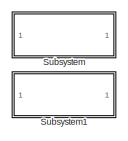
[diagram: root canvas - part 1/5, top center region]
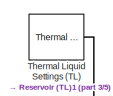
[diagram: root canvas - part 2/5, top left region]
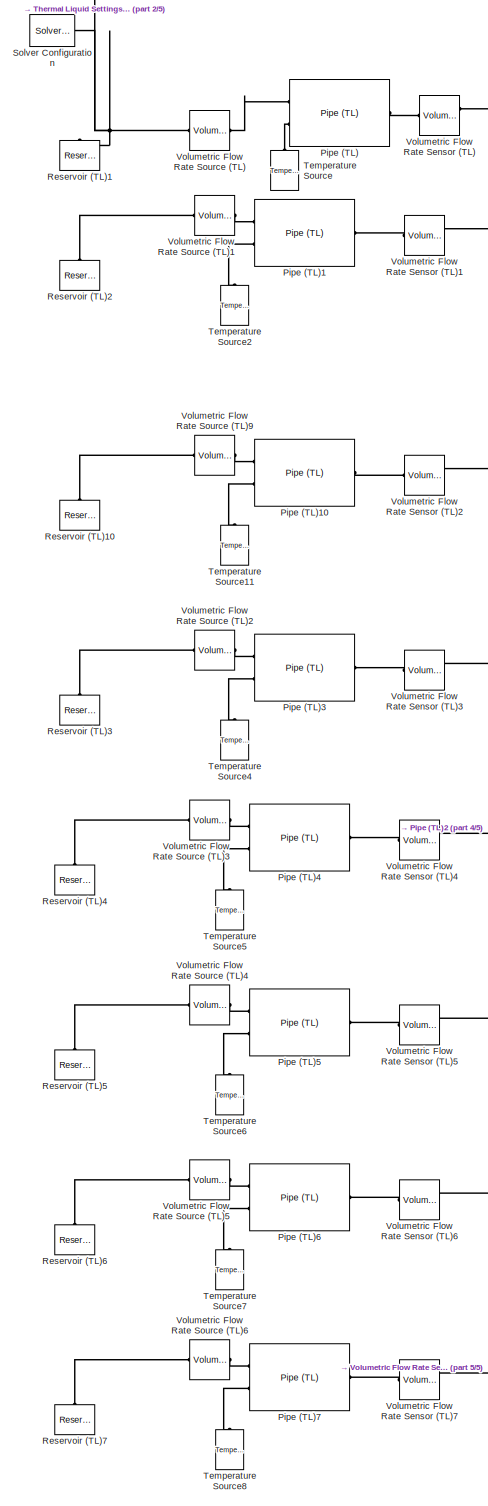
[diagram: root canvas - part 3/5, middle left region]
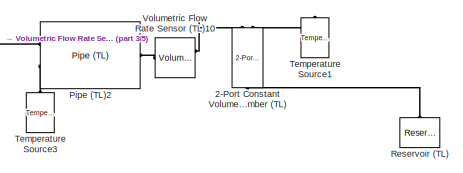
[diagram: root canvas - part 4/5, middle right region]
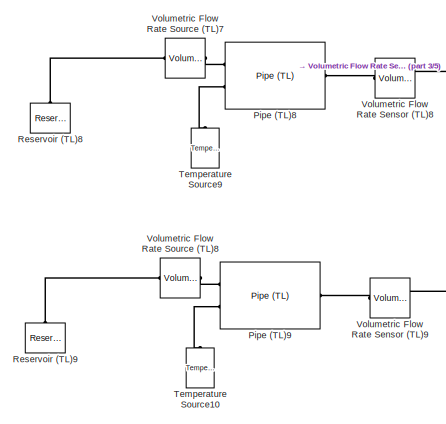
[diagram: root canvas - part 5/5, bottom left region]
MODEL slx_d838fc9343c5
KIND model
CONFIG AbsTol = 1e-3
CONFIG EnableMultiTasking = on
CONFIG FixedStep = auto
CONFIG MaxStep = auto
CONFIG MinStep = auto
CONFIG RelTol = 1e-3
CONFIG SampleTimeConstraint = Unconstrained
CONFIG Solver = VariableStepAuto
CONFIG SolverName = VariableStepAuto
CONFIG StartTime = 0.0
CONFIG StopTime = 10.0
BLOCK [Reference] 2-Port Constant Volume Chamber (TL)  REF=fl_lib/Thermal Liquid/Elements/2-Port Constant
Volume Chamber (TL)
  Ports = [0, 0, 0, 0, 0, 2, 1]
  SourceBlock = fl_lib/Thermal Liquid/Elements/2-Port Constant\nVolume Chamber (TL)
  SourceProductBaseCode = SS
  SourceProductName = Simscape
  SourceType = 2-Port Constant\nVolume Chamber (TL)
BLOCK [Reference] Pipe (TL)  REF=fl_lib/Thermal Liquid/Elements/Pipe (TL)
  Ports = [0, 0, 0, 0, 0, 2, 1]
  SourceBlock = fl_lib/Thermal Liquid/Elements/Pipe (TL)
  SourceProductBaseCode = SS
  SourceProductName = Simscape
  SourceType = Pipe (TL)
BLOCK [Reference] Pipe (TL)1  REF=fl_lib/Thermal Liquid/Elements/Pipe (TL)
  Ports = [0, 0, 0, 0, 0, 2, 1]
  SourceBlock = fl_lib/Thermal Liquid/Elements/Pipe (TL)
  SourceProductBaseCode = SS
  SourceProductName = Simscape
  SourceType = Pipe (TL)
BLOCK [Reference] Pipe (TL)10  REF=fl_lib/Thermal Liquid/Elements/Pipe (TL)
  Ports = [0, 0, 0, 0, 0, 2, 1]
  SourceBlock = fl_lib/Thermal Liquid/Elements/Pipe (TL)
  SourceProductBaseCode = SS
  SourceProductName = Simscape
  SourceType = Pipe (TL)
BLOCK [Reference] Pipe (TL)2  REF=fl_lib/Thermal Liquid/Elements/Pipe (TL)
  Ports = [0, 0, 0, 0, 0, 2, 1]
  SourceBlock = fl_lib/Thermal Liquid/Elements/Pipe (TL)
  SourceProductBaseCode = SS
  SourceProductName = Simscape
  SourceType = Pipe (TL)
BLOCK [Reference] Pipe (TL)3  REF=fl_lib/Thermal Liquid/Elements/Pipe (TL)
  Ports = [0, 0, 0, 0, 0, 2, 1]
  SourceBlock = fl_lib/Thermal Liquid/Elements/Pipe (TL)
  SourceProductBaseCode = SS
  SourceProductName = Simscape
  SourceType = Pipe (TL)
BLOCK [Reference] Pipe (TL)4  REF=fl_lib/Thermal Liquid/Elements/Pipe (TL)
  Ports = [0, 0, 0, 0, 0, 2, 1]
  SourceBlock = fl_lib/Thermal Liquid/Elements/Pipe (TL)
  SourceProductBaseCode = SS
  SourceProductName = Simscape
  SourceType = Pipe (TL)
BLOCK [Reference] Pipe (TL)5  REF=fl_lib/Thermal Liquid/Elements/Pipe (TL)
  Ports = [0, 0, 0, 0, 0, 2, 1]
  SourceBlock = fl_lib/Thermal Liquid/Elements/Pipe (TL)
  SourceProductBaseCode = SS
  SourceProductName = Simscape
  SourceType = Pipe (TL)
BLOCK [Reference] Pipe (TL)6  REF=fl_lib/Thermal Liquid/Elements/Pipe (TL)
  Ports = [0, 0, 0, 0, 0, 2, 1]
  SourceBlock = fl_lib/Thermal Liquid/Elements/Pipe (TL)
  SourceProductBaseCode = SS
  SourceProductName = Simscape
  SourceType = Pipe (TL)
BLOCK [Reference] Pipe (TL)7  REF=fl_lib/Thermal Liquid/Elements/Pipe (TL)
  Ports = [0, 0, 0, 0, 0, 2, 1]
  SourceBlock = fl_lib/Thermal Liquid/Elements/Pipe (TL)
  SourceProductBaseCode = SS
  SourceProductName = Simscape
  SourceType = Pipe (TL)
BLOCK [Reference] Pipe (TL)8  REF=fl_lib/Thermal Liquid/Elements/Pipe (TL)
  Ports = [0, 0, 0, 0, 0, 2, 1]
  SourceBlock = fl_lib/Thermal Liquid/Elements/Pipe (TL)
  SourceProductBaseCode = SS
  SourceProductName = Simscape
  SourceType = Pipe (TL)
BLOCK [Reference] Pipe (TL)9  REF=fl_lib/Thermal Liquid/Elements/Pipe (TL)
  Ports = [0, 0, 0, 0, 0, 2, 1]
  SourceBlock = fl_lib/Thermal Liquid/Elements/Pipe (TL)
  SourceProductBaseCode = SS
  SourceProductName = Simscape
  SourceType = Pipe (TL)
BLOCK [Reference] Reservoir (TL)  REF=fl_lib/Thermal Liquid/Elements/Reservoir (TL)
  Ports = [0, 0, 0, 0, 0, 1]
  SourceBlock = fl_lib/Thermal Liquid/Elements/Reservoir (TL)
  SourceProductBaseCode = SS
  SourceProductName = Simscape
  SourceType = Reservoir (TL)
BLOCK [Reference] Reservoir (TL)1  REF=fl_lib/Thermal Liquid/Elements/Reservoir (TL)
  Ports = [0, 0, 0, 0, 0, 1]
  SourceBlock = fl_lib/Thermal Liquid/Elements/Reservoir (TL)
  SourceProductBaseCode = SS
  SourceProductName = Simscape
  SourceType = Reservoir (TL)
BLOCK [Reference] Reservoir (TL)10  REF=fl_lib/Thermal Liquid/Elements/Reservoir (TL)
  Ports = [0, 0, 0, 0, 0, 1]
  SourceBlock = fl_lib/Thermal Liquid/Elements/Reservoir (TL)
  SourceProductBaseCode = SS
  SourceProductName = Simscape
  SourceType = Reservoir (TL)
BLOCK [Reference] Reservoir (TL)2  REF=fl_lib/Thermal Liquid/Elements/Reservoir (TL)
  Ports = [0, 0, 0, 0, 0, 1]
  SourceBlock = fl_lib/Thermal Liquid/Elements/Reservoir (TL)
  SourceProductBaseCode = SS
  SourceProductName = Simscape
  SourceType = Reservoir (TL)
BLOCK [Reference] Reservoir (TL)3  REF=fl_lib/Thermal Liquid/Elements/Reservoir (TL)
  Ports = [0, 0, 0, 0, 0, 1]
  SourceBlock = fl_lib/Thermal Liquid/Elements/Reservoir (TL)
  SourceProductBaseCode = SS
  SourceProductName = Simscape
  SourceType = Reservoir (TL)
BLOCK [Reference] Reservoir (TL)4  REF=fl_lib/Thermal Liquid/Elements/Reservoir (TL)
  Ports = [0, 0, 0, 0, 0, 1]
  SourceBlock = fl_lib/Thermal Liquid/Elements/Reservoir (TL)
  SourceProductBaseCode = SS
  SourceProductName = Simscape
  SourceType = Reservoir (TL)
BLOCK [Reference] Reservoir (TL)5  REF=fl_lib/Thermal Liquid/Elements/Reservoir (TL)
  Ports = [0, 0, 0, 0, 0, 1]
  SourceBlock = fl_lib/Thermal Liquid/Elements/Reservoir (TL)
  SourceProductBaseCode = SS
  SourceProductName = Simscape
  SourceType = Reservoir (TL)
BLOCK [Reference] Reservoir (TL)6  REF=fl_lib/Thermal Liquid/Elements/Reservoir (TL)
  Ports = [0, 0, 0, 0, 0, 1]
  SourceBlock = fl_lib/Thermal Liquid/Elements/Reservoir (TL)
  SourceProductBaseCode = SS
  SourceProductName = Simscape
  SourceType = Reservoir (TL)
BLOCK [Reference] Reservoir (TL)7  REF=fl_lib/Thermal Liquid/Elements/Reservoir (TL)
  Ports = [0, 0, 0, 0, 0, 1]
  SourceBlock = fl_lib/Thermal Liquid/Elements/Reservoir (TL)
  SourceProductBaseCode = SS
  SourceProductName = Simscape
  SourceType = Reservoir (TL)
BLOCK [Reference] Reservoir (TL)8  REF=fl_lib/Thermal Liquid/Elements/Reservoir (TL)
  Ports = [0, 0, 0, 0, 0, 1]
  SourceBlock = fl_lib/Thermal Liquid/Elements/Reservoir (TL)
  SourceProductBaseCode = SS
  SourceProductName = Simscape
  SourceType = Reservoir (TL)
BLOCK [Reference] Reservoir (TL)9  REF=fl_lib/Thermal Liquid/Elements/Reservoir (TL)
  Ports = [0, 0, 0, 0, 0, 1]
  SourceBlock = fl_lib/Thermal Liquid/Elements/Reservoir (TL)
  SourceProductBaseCode = SS
  SourceProductName = Simscape
  SourceType = Reservoir (TL)
BLOCK [Reference] Solver Configuration  REF=nesl_utility/Solver
Configuration
  Ports = [0, 0, 0, 0, 0, 0, 1]
  SourceBlock = nesl_utility/Solver\nConfiguration
  SourceProductBaseCode = SS
  SourceProductName = Simscape
  SourceType = Solver\nConfiguration
BLOCK [SubSystem] Subsystem
  OpenFcn = open_system('simscape')
  Ports = []
  RequestExecContextInheritance = off
  ShowPortLabels = none
BLOCK [SubSystem] Subsystem1
  OpenFcn = load_system('fl_lib');\nopen_system('fl_lib/Thermal Liquid');
  Ports = []
  RequestExecContextInheritance = off
  ShowPortLabels = none
BLOCK [Reference] Temperature Source  REF=fl_lib/Thermal/Thermal Sources/Temperature Source
  Ports = [0, 0, 0, 0, 0, 1]
  SourceBlock = fl_lib/Thermal/Thermal Sources/Temperature Source
  SourceProductBaseCode = SS
  SourceProductName = Simscape
  SourceType = Temperature Source
BLOCK [Reference] Temperature Source1  REF=fl_lib/Thermal/Thermal Sources/Temperature Source
  Ports = [0, 0, 0, 0, 0, 1]
  SourceBlock = fl_lib/Thermal/Thermal Sources/Temperature Source
  SourceProductBaseCode = SS
  SourceProductName = Simscape
  SourceType = Temperature Source
BLOCK [Reference] Temperature Source10  REF=fl_lib/Thermal/Thermal Sources/Temperature Source
  Ports = [0, 0, 0, 0, 0, 1]
  SourceBlock = fl_lib/Thermal/Thermal Sources/Temperature Source
  SourceProductBaseCode = SS
  SourceProductName = Simscape
  SourceType = Temperature Source
BLOCK [Reference] Temperature Source11  REF=fl_lib/Thermal/Thermal Sources/Temperature Source
  Ports = [0, 0, 0, 0, 0, 1]
  SourceBlock = fl_lib/Thermal/Thermal Sources/Temperature Source
  SourceProductBaseCode = SS
  SourceProductName = Simscape
  SourceType = Temperature Source
BLOCK [Reference] Temperature Source2  REF=fl_lib/Thermal/Thermal Sources/Temperature Source
  Ports = [0, 0, 0, 0, 0, 1]
  SourceBlock = fl_lib/Thermal/Thermal Sources/Temperature Source
  SourceProductBaseCode = SS
  SourceProductName = Simscape
  SourceType = Temperature Source
BLOCK [Reference] Temperature Source3  REF=fl_lib/Thermal/Thermal Sources/Temperature Source
  Ports = [0, 0, 0, 0, 0, 1]
  SourceBlock = fl_lib/Thermal/Thermal Sources/Temperature Source
  SourceProductBaseCode = SS
  SourceProductName = Simscape
  SourceType = Temperature Source
BLOCK [Reference] Temperature Source4  REF=fl_lib/Thermal/Thermal Sources/Temperature Source
  Ports = [0, 0, 0, 0, 0, 1]
  SourceBlock = fl_lib/Thermal/Thermal Sources/Temperature Source
  SourceProductBaseCode = SS
  SourceProductName = Simscape
  SourceType = Temperature Source
BLOCK [Reference] Temperature Source5  REF=fl_lib/Thermal/Thermal Sources/Temperature Source
  Ports = [0, 0, 0, 0, 0, 1]
  SourceBlock = fl_lib/Thermal/Thermal Sources/Temperature Source
  SourceProductBaseCode = SS
  SourceProductName = Simscape
  SourceType = Temperature Source
BLOCK [Reference] Temperature Source6  REF=fl_lib/Thermal/Thermal Sources/Temperature Source
  Ports = [0, 0, 0, 0, 0, 1]
  SourceBlock = fl_lib/Thermal/Thermal Sources/Temperature Source
  SourceProductBaseCode = SS
  SourceProductName = Simscape
  SourceType = Temperature Source
BLOCK [Reference] Temperature Source7  REF=fl_lib/Thermal/Thermal Sources/Temperature Source
  Ports = [0, 0, 0, 0, 0, 1]
  SourceBlock = fl_lib/Thermal/Thermal Sources/Temperature Source
  SourceProductBaseCode = SS
  SourceProductName = Simscape
  SourceType = Temperature Source
BLOCK [Reference] Temperature Source8  REF=fl_lib/Thermal/Thermal Sources/Temperature Source
  Ports = [0, 0, 0, 0, 0, 1]
  SourceBlock = fl_lib/Thermal/Thermal Sources/Temperature Source
  SourceProductBaseCode = SS
  SourceProductName = Simscape
  SourceType = Temperature Source
BLOCK [Reference] Temperature Source9  REF=fl_lib/Thermal/Thermal Sources/Temperature Source
  Ports = [0, 0, 0, 0, 0, 1]
  SourceBlock = fl_lib/Thermal/Thermal Sources/Temperature Source
  SourceProductBaseCode = SS
  SourceProductName = Simscape
  SourceType = Temperature Source
BLOCK [Reference] Thermal Liquid Settings (TL)  REF=fl_lib/Thermal Liquid/Utilities/Thermal Liquid
Settings (TL)
  Ports = [0, 0, 0, 0, 0, 0, 1]
  SourceBlock = fl_lib/Thermal Liquid/Utilities/Thermal Liquid\nSettings (TL)
  SourceProductBaseCode = SS
  SourceProductName = Simscape
  SourceType = Thermal Liquid\nSettings (TL)
BLOCK [Reference] Volumetric Flow Rate Sensor (TL)  REF=fl_lib/Thermal Liquid/Sensors/Volumetric Flow Rate
Sensor (TL)
  Ports = [0, 0, 0, 0, 0, 1, 2]
  SourceBlock = fl_lib/Thermal Liquid/Sensors/Volumetric Flow Rate\nSensor (TL)
  SourceProductBaseCode = SS
  SourceProductName = Simscape
  SourceType = Volumetric Flow Rate\nSensor (TL)
BLOCK [Reference] Volumetric Flow Rate Sensor (TL)1  REF=fl_lib/Thermal Liquid/Sensors/Volumetric Flow Rate
Sensor (TL)
  Ports = [0, 0, 0, 0, 0, 1, 2]
  SourceBlock = fl_lib/Thermal Liquid/Sensors/Volumetric Flow Rate\nSensor (TL)
  SourceProductBaseCode = SS
  SourceProductName = Simscape
  SourceType = Volumetric Flow Rate\nSensor (TL)
BLOCK [Reference] Volumetric Flow Rate Sensor (TL)10  REF=fl_lib/Thermal Liquid/Sensors/Volumetric Flow Rate
Sensor (TL)
  Ports = [0, 0, 0, 0, 0, 1, 2]
  SourceBlock = fl_lib/Thermal Liquid/Sensors/Volumetric Flow Rate\nSensor (TL)
  SourceProductBaseCode = SS
  SourceProductName = Simscape
  SourceType = Volumetric Flow Rate\nSensor (TL)
BLOCK [Reference] Volumetric Flow Rate Sensor (TL)2  REF=fl_lib/Thermal Liquid/Sensors/Volumetric Flow Rate
Sensor (TL)
  Ports = [0, 0, 0, 0, 0, 1, 2]
  SourceBlock = fl_lib/Thermal Liquid/Sensors/Volumetric Flow Rate\nSensor (TL)
  SourceProductBaseCode = SS
  SourceProductName = Simscape
  SourceType = Volumetric Flow Rate\nSensor (TL)
BLOCK [Reference] Volumetric Flow Rate Sensor (TL)3  REF=fl_lib/Thermal Liquid/Sensors/Volumetric Flow Rate
Sensor (TL)
  Ports = [0, 0, 0, 0, 0, 1, 2]
  SourceBlock = fl_lib/Thermal Liquid/Sensors/Volumetric Flow Rate\nSensor (TL)
  SourceProductBaseCode = SS
  SourceProductName = Simscape
  SourceType = Volumetric Flow Rate\nSensor (TL)
BLOCK [Reference] Volumetric Flow Rate Sensor (TL)4  REF=fl_lib/Thermal Liquid/Sensors/Volumetric Flow Rate
Sensor (TL)
  Ports = [0, 0, 0, 0, 0, 1, 2]
  SourceBlock = fl_lib/Thermal Liquid/Sensors/Volumetric Flow Rate\nSensor (TL)
  SourceProductBaseCode = SS
  SourceProductName = Simscape
  SourceType = Volumetric Flow Rate\nSensor (TL)
BLOCK [Reference] Volumetric Flow Rate Sensor (TL)5  REF=fl_lib/Thermal Liquid/Sensors/Volumetric Flow Rate
Sensor (TL)
  Ports = [0, 0, 0, 0, 0, 1, 2]
  SourceBlock = fl_lib/Thermal Liquid/Sensors/Volumetric Flow Rate\nSensor (TL)
  SourceProductBaseCode = SS
  SourceProductName = Simscape
  SourceType = Volumetric Flow Rate\nSensor (TL)
BLOCK [Reference] Volumetric Flow Rate Sensor (TL)6  REF=fl_lib/Thermal Liquid/Sensors/Volumetric Flow Rate
Sensor (TL)
  Ports = [0, 0, 0, 0, 0, 1, 2]
  SourceBlock = fl_lib/Thermal Liquid/Sensors/Volumetric Flow Rate\nSensor (TL)
  SourceProductBaseCode = SS
  SourceProductName = Simscape
  SourceType = Volumetric Flow Rate\nSensor (TL)
BLOCK [Reference] Volumetric Flow Rate Sensor (TL)7  REF=fl_lib/Thermal Liquid/Sensors/Volumetric Flow Rate
Sensor (TL)
  Ports = [0, 0, 0, 0, 0, 1, 2]
  SourceBlock = fl_lib/Thermal Liquid/Sensors/Volumetric Flow Rate\nSensor (TL)
  SourceProductBaseCode = SS
  SourceProductName = Simscape
  SourceType = Volumetric Flow Rate\nSensor (TL)
BLOCK [Reference] Volumetric Flow Rate Sensor (TL)8  REF=fl_lib/Thermal Liquid/Sensors/Volumetric Flow Rate
Sensor (TL)
  Ports = [0, 0, 0, 0, 0, 1, 2]
  SourceBlock = fl_lib/Thermal Liquid/Sensors/Volumetric Flow Rate\nSensor (TL)
  SourceProductBaseCode = SS
  SourceProductName = Simscape
  SourceType = Volumetric Flow Rate\nSensor (TL)
BLOCK [Reference] Volumetric Flow Rate Sensor (TL)9  REF=fl_lib/Thermal Liquid/Sensors/Volumetric Flow Rate
Sensor (TL)
  Ports = [0, 0, 0, 0, 0, 1, 2]
  SourceBlock = fl_lib/Thermal Liquid/Sensors/Volumetric Flow Rate\nSensor (TL)
  SourceProductBaseCode = SS
  SourceProductName = Simscape
  SourceType = Volumetric Flow Rate\nSensor (TL)
BLOCK [Reference] Volumetric Flow Rate Source (TL)  REF=fl_lib/Thermal Liquid/Sources/Volumetric Flow Rate
Source (TL)
  Ports = [0, 0, 0, 0, 0, 1, 1]
  SourceBlock = fl_lib/Thermal Liquid/Sources/Volumetric Flow Rate\nSource (TL)
  SourceProductBaseCode = SS
  SourceProductName = Simscape
  SourceType = Volumetric Flow Rate\nSource (TL)
BLOCK [Reference] Volumetric Flow Rate Source (TL)1  REF=fl_lib/Thermal Liquid/Sources/Volumetric Flow Rate
Source (TL)
  Ports = [0, 0, 0, 0, 0, 1, 1]
  SourceBlock = fl_lib/Thermal Liquid/Sources/Volumetric Flow Rate\nSource (TL)
  SourceProductBaseCode = SS
  SourceProductName = Simscape
  SourceType = Volumetric Flow Rate\nSource (TL)
BLOCK [Reference] Volumetric Flow Rate Source (TL)2  REF=fl_lib/Thermal Liquid/Sources/Volumetric Flow Rate
Source (TL)
  Ports = [0, 0, 0, 0, 0, 1, 1]
  SourceBlock = fl_lib/Thermal Liquid/Sources/Volumetric Flow Rate\nSource (TL)
  SourceProductBaseCode = SS
  SourceProductName = Simscape
  SourceType = Volumetric Flow Rate\nSource (TL)
BLOCK [Reference] Volumetric Flow Rate Source (TL)3  REF=fl_lib/Thermal Liquid/Sources/Volumetric Flow Rate
Source (TL)
  Ports = [0, 0, 0, 0, 0, 1, 1]
  SourceBlock = fl_lib/Thermal Liquid/Sources/Volumetric Flow Rate\nSource (TL)
  SourceProductBaseCode = SS
  SourceProductName = Simscape
  SourceType = Volumetric Flow Rate\nSource (TL)
BLOCK [Reference] Volumetric Flow Rate Source (TL)4  REF=fl_lib/Thermal Liquid/Sources/Volumetric Flow Rate
Source (TL)
  Ports = [0, 0, 0, 0, 0, 1, 1]
  SourceBlock = fl_lib/Thermal Liquid/Sources/Volumetric Flow Rate\nSource (TL)
  SourceProductBaseCode = SS
  SourceProductName = Simscape
  SourceType = Volumetric Flow Rate\nSource (TL)
BLOCK [Reference] Volumetric Flow Rate Source (TL)5  REF=fl_lib/Thermal Liquid/Sources/Volumetric Flow Rate
Source (TL)
  Ports = [0, 0, 0, 0, 0, 1, 1]
  SourceBlock = fl_lib/Thermal Liquid/Sources/Volumetric Flow Rate\nSource (TL)
  SourceProductBaseCode = SS
  SourceProductName = Simscape
  SourceType = Volumetric Flow Rate\nSource (TL)
BLOCK [Reference] Volumetric Flow Rate Source (TL)6  REF=fl_lib/Thermal Liquid/Sources/Volumetric Flow Rate
Source (TL)
  Ports = [0, 0, 0, 0, 0, 1, 1]
  SourceBlock = fl_lib/Thermal Liquid/Sources/Volumetric Flow Rate\nSource (TL)
  SourceProductBaseCode = SS
  SourceProductName = Simscape
  SourceType = Volumetric Flow Rate\nSource (TL)
BLOCK [Reference] Volumetric Flow Rate Source (TL)7  REF=fl_lib/Thermal Liquid/Sources/Volumetric Flow Rate
Source (TL)
  Ports = [0, 0, 0, 0, 0, 1, 1]
  SourceBlock = fl_lib/Thermal Liquid/Sources/Volumetric Flow Rate\nSource (TL)
  SourceProductBaseCode = SS
  SourceProductName = Simscape
  SourceType = Volumetric Flow Rate\nSource (TL)
BLOCK [Reference] Volumetric Flow Rate Source (TL)8  REF=fl_lib/Thermal Liquid/Sources/Volumetric Flow Rate
Source (TL)
  Ports = [0, 0, 0, 0, 0, 1, 1]
  SourceBlock = fl_lib/Thermal Liquid/Sources/Volumetric Flow Rate\nSource (TL)
  SourceProductBaseCode = SS
  SourceProductName = Simscape
  SourceType = Volumetric Flow Rate\nSource (TL)
BLOCK [Reference] Volumetric Flow Rate Source (TL)9  REF=fl_lib/Thermal Liquid/Sources/Volumetric Flow Rate
Source (TL)
  Ports = [0, 0, 0, 0, 0, 1, 1]
  SourceBlock = fl_lib/Thermal Liquid/Sources/Volumetric Flow Rate\nSource (TL)
  SourceProductBaseCode = SS
  SourceProductName = Simscape
  SourceType = Volumetric Flow Rate\nSource (TL)
PLINE 2-Port Constant Volume Chamber (TL):LConn1 -- Volumetric Flow Rate Sensor (TL)10:RConn1
PLINE 2-Port Constant Volume Chamber (TL):LConn2 -- Temperature Source1:LConn1
PLINE 2-Port Constant Volume Chamber (TL):RConn1 -- Reservoir (TL):LConn1
PLINE Pipe (TL)10:LConn1 -- Volumetric Flow Rate Source (TL)9:RConn1
PLINE Pipe (TL)10:LConn2 -- Temperature Source11:LConn1
PLINE Pipe (TL)10:RConn1 -- Volumetric Flow Rate Sensor (TL)2:LConn1
PLINE Pipe (TL)1:LConn1 -- Volumetric Flow Rate Source (TL)1:RConn1
PLINE Pipe (TL)1:LConn2 -- Temperature Source2:LConn1
PLINE Pipe (TL)1:RConn1 -- Volumetric Flow Rate Sensor (TL)1:LConn1
PNET net1: Pipe (TL)2:LConn1 -- Volumetric Flow Rate Sensor (TL)1:RConn1 -- Volumetric Flow Rate Sensor (TL)2:RConn1 -- Volumetric Flow Rate Sensor (TL)3:RConn1 -- Volumetric Flow Rate Sensor (TL)4:RConn1 -- Volumetric Flow Rate Sensor (TL)5:RConn1 -- Volumetric Flow Rate Sensor (TL)6:RConn1 -- Volumetric Flow Rate Sensor (TL)7:RConn1 -- Volumetric Flow Rate Sensor (TL)8:RConn1 -- Volumetric Flow Rate Sensor (TL)9:RConn1 -- Volumetric Flow Rate Sensor (TL):RConn1
PLINE Pipe (TL)2:LConn2 -- Temperature Source3:LConn1
PLINE Pipe (TL)2:RConn1 -- Volumetric Flow Rate Sensor (TL)10:LConn1
PLINE Pipe (TL)3:LConn1 -- Volumetric Flow Rate Source (TL)2:RConn1
PLINE Pipe (TL)3:LConn2 -- Temperature Source4:LConn1
PLINE Pipe (TL)3:RConn1 -- Volumetric Flow Rate Sensor (TL)3:LConn1
PLINE Pipe (TL)4:LConn1 -- Volumetric Flow Rate Source (TL)3:RConn1
PLINE Pipe (TL)4:LConn2 -- Temperature Source5:LConn1
PLINE Pipe (TL)4:RConn1 -- Volumetric Flow Rate Sensor (TL)4:LConn1
PLINE Pipe (TL)5:LConn1 -- Volumetric Flow Rate Source (TL)4:RConn1
PLINE Pipe (TL)5:LConn2 -- Temperature Source6:LConn1
PLINE Pipe (TL)5:RConn1 -- Volumetric Flow Rate Sensor (TL)5:LConn1
PLINE Pipe (TL)6:LConn1 -- Volumetric Flow Rate Source (TL)5:RConn1
PLINE Pipe (TL)6:LConn2 -- Temperature Source7:LConn1
PLINE Pipe (TL)6:RConn1 -- Volumetric Flow Rate Sensor (TL)6:LConn1
PLINE Pipe (TL)7:LConn1 -- Volumetric Flow Rate Source (TL)6:RConn1
PLINE Pipe (TL)7:LConn2 -- Temperature Source8:LConn1
PLINE Pipe (TL)7:RConn1 -- Volumetric Flow Rate Sensor (TL)7:LConn1
PLINE Pipe (TL)8:LConn1 -- Volumetric Flow Rate Source (TL)7:RConn1
PLINE Pipe (TL)8:LConn2 -- Temperature Source9:LConn1
PLINE Pipe (TL)8:RConn1 -- Volumetric Flow Rate Sensor (TL)8:LConn1
PLINE Pipe (TL)9:LConn1 -- Volumetric Flow Rate Source (TL)8:RConn1
PLINE Pipe (TL)9:LConn2 -- Temperature Source10:LConn1
PLINE Pipe (TL)9:RConn1 -- Volumetric Flow Rate Sensor (TL)9:LConn1
PLINE Pipe (TL):LConn1 -- Volumetric Flow Rate Source (TL):RConn1
PLINE Pipe (TL):LConn2 -- Temperature Source:LConn1
PLINE Pipe (TL):RConn1 -- Volumetric Flow Rate Sensor (TL):LConn1
PLINE Reservoir (TL)10:LConn1 -- Volumetric Flow Rate Source (TL)9:LConn1
PNET net2: Reservoir (TL)1:LConn1 -- Solver Configuration:RConn1 -- Thermal Liquid Settings (TL):RConn1 -- Volumetric Flow Rate Source (TL):LConn1
PLINE Reservoir (TL)2:LConn1 -- Volumetric Flow Rate Source (TL)1:LConn1
PLINE Reservoir (TL)3:LConn1 -- Volumetric Flow Rate Source (TL)2:LConn1
PLINE Reservoir (TL)4:LConn1 -- Volumetric Flow Rate Source (TL)3:LConn1
PLINE Reservoir (TL)5:LConn1 -- Volumetric Flow Rate Source (TL)4:LConn1
PLINE Reservoir (TL)6:LConn1 -- Volumetric Flow Rate Source (TL)5:LConn1
PLINE Reservoir (TL)7:LConn1 -- Volumetric Flow Rate Source (TL)6:LConn1
PLINE Reservoir (TL)8:LConn1 -- Volumetric Flow Rate Source (TL)7:LConn1
PLINE Reservoir (TL)9:LConn1 -- Volumetric Flow Rate Source (TL)8:LConn1
note: PNET lines group multi-terminal physical nets as a canonical sorted terminal list (undirected conserving connections); 2-terminal nets keep the pairwise PLINE form
